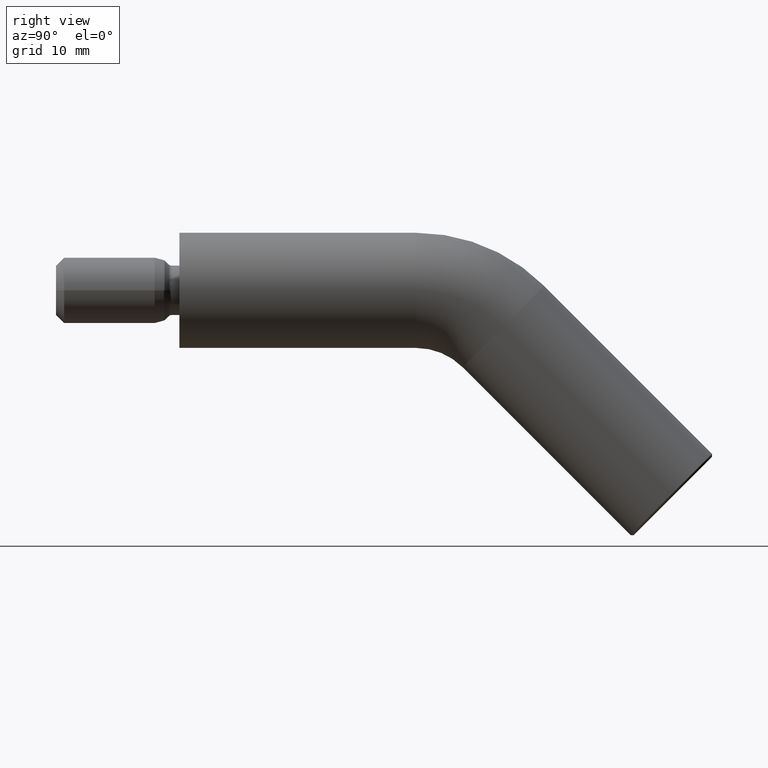
[diagram: clean part render]
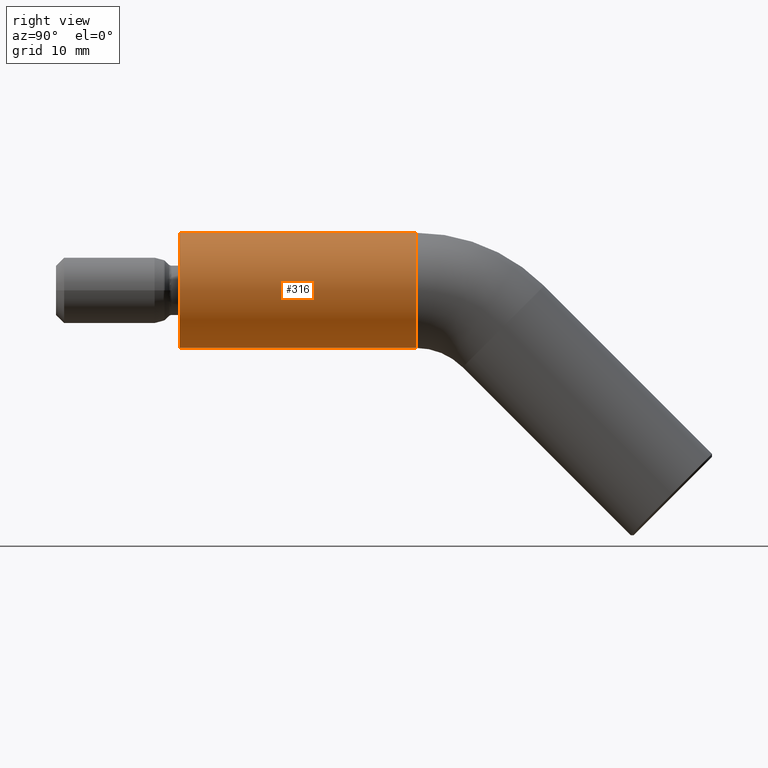
[diagram: same view with one face highlighted and labeled with its STEP entity id]
A machine part, right view. The second image highlights one B-rep face of the part: STEP entity #316.
In plain terms, the highlighted cylindrical surface (partial cylindrical patch) has radius 7 mm, axis along (-0, -1, -0).
Its self-contained STEP definition (entity closure, byte-faithful):
#316 = ADVANCED_FACE ( 'NONE', ( #1226 ), #7940, .T. ) ;
#332 = DIRECTION ( 'NONE',  ( 0.0000000000000000000, 1.000000000000000000, 0.0000000000000000000 ) ) ;
#457 = DIRECTION ( 'NONE',  ( 0.0000000000000000000, 0.0000000000000000000, -1.000000000000000000 ) ) ;
#878 = VECTOR ( 'NONE', #9420, 1000.000000000000000 ) ;
#1226 = FACE_OUTER_BOUND ( 'NONE', #2095, .T. ) ;
#1519 = AXIS2_PLACEMENT_3D ( 'NONE', #5450, #8349, #11828 ) ;
#1913 = LINE ( 'NONE', #5367, #3028 ) ;
#2095 = EDGE_LOOP ( 'NONE', ( #6695, #6107, #7396, #3295 ) ) ;
#2375 = CARTESIAN_POINT ( 'NONE',  ( 0.0000000000000000000, 28.78679656440364800, 0.0000000000000000000 ) ) ;
#2550 = AXIS2_PLACEMENT_3D ( 'NONE', #2375, #6965, #457 ) ;
#2765 = EDGE_CURVE ( 'NONE', #4493, #11772, #8879, .T. ) ;
#3028 = VECTOR ( 'NONE', #11628, 1000.000000000000000 ) ;
#3038 = DIRECTION ( 'NONE',  ( 0.0000000000000000000, 0.0000000000000000000, 1.000000000000000000 ) ) ;
#3295 = ORIENTED_EDGE ( 'NONE', *, *, #2765, .F. ) ;
#3350 = CARTESIAN_POINT ( 'NONE',  ( 0.0000000000000000000, 28.78679656440364800, -7.000000000000000000 ) ) ;
#3845 = CIRCLE ( 'NONE', #10713, 7.000000000000000000 ) ;
#4116 = VERTEX_POINT ( 'NONE', #8064 ) ;
#4259 = EDGE_CURVE ( 'NONE', #11772, #4116, #7289, .T. ) ;
#4265 = CARTESIAN_POINT ( 'NONE',  ( 0.0000000000000000000, 0.0000000000000000000, -7.000000000000000000 ) ) ;
#4373 = EDGE_CURVE ( 'NONE', #7214, #4493, #3845, .T. ) ;
#4493 = VERTEX_POINT ( 'NONE', #3350 ) ;
#5367 = CARTESIAN_POINT ( 'NONE',  ( 8.572527594031473200E-016, 28.78679656440364800, 7.000000000000000000 ) ) ;
#5450 = CARTESIAN_POINT ( 'NONE',  ( 0.0000000000000000000, 0.0000000000000000000, 0.0000000000000000000 ) ) ;
#5921 = CARTESIAN_POINT ( 'NONE',  ( 0.0000000000000000000, 28.78679656440364800, 0.0000000000000000000 ) ) ;
#6107 = ORIENTED_EDGE ( 'NONE', *, *, #11340, .T. ) ;
#6695 = ORIENTED_EDGE ( 'NONE', *, *, #4373, .F. ) ;
#6965 = DIRECTION ( 'NONE',  ( -0.0000000000000000000, -1.000000000000000000, -0.0000000000000000000 ) ) ;
#7214 = VERTEX_POINT ( 'NONE', #7743 ) ;
#7289 = CIRCLE ( 'NONE', #1519, 7.000000000000000000 ) ;
#7396 = ORIENTED_EDGE ( 'NONE', *, *, #4259, .F. ) ;
#7743 = CARTESIAN_POINT ( 'NONE',  ( 8.572527594031473200E-016, 28.78679656440364800, 7.000000000000000000 ) ) ;
#7940 = CYLINDRICAL_SURFACE ( 'NONE', #2550, 7.000000000000000000 ) ;
#8064 = CARTESIAN_POINT ( 'NONE',  ( 8.572527594031473200E-016, 0.0000000000000000000, 7.000000000000000000 ) ) ;
#8349 = DIRECTION ( 'NONE',  ( -0.0000000000000000000, -1.000000000000000000, -0.0000000000000000000 ) ) ;
#8879 = LINE ( 'NONE', #9342, #878 ) ;
#9342 = CARTESIAN_POINT ( 'NONE',  ( 0.0000000000000000000, 28.78679656440364800, -7.000000000000000000 ) ) ;
#9420 = DIRECTION ( 'NONE',  ( -0.0000000000000000000, -1.000000000000000000, -0.0000000000000000000 ) ) ;
#10713 = AXIS2_PLACEMENT_3D ( 'NONE', #5921, #332, #3038 ) ;
#11340 = EDGE_CURVE ( 'NONE', #7214, #4116, #1913, .T. ) ;
#11628 = DIRECTION ( 'NONE',  ( -0.0000000000000000000, -1.000000000000000000, -0.0000000000000000000 ) ) ;
#11772 = VERTEX_POINT ( 'NONE', #4265 ) ;
#11828 = DIRECTION ( 'NONE',  ( 0.0000000000000000000, 0.0000000000000000000, -1.000000000000000000 ) ) ;